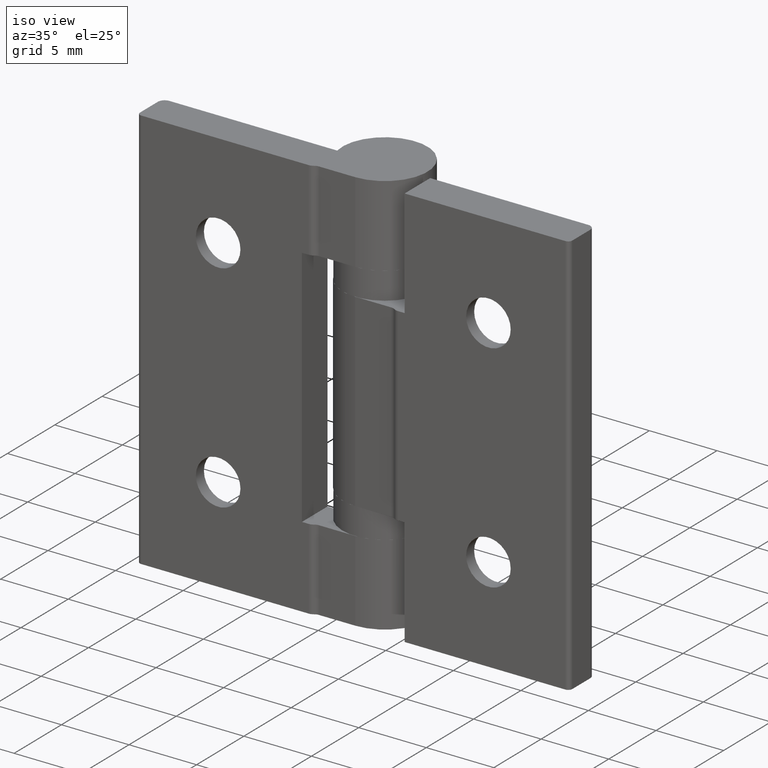
[diagram: clean part render]
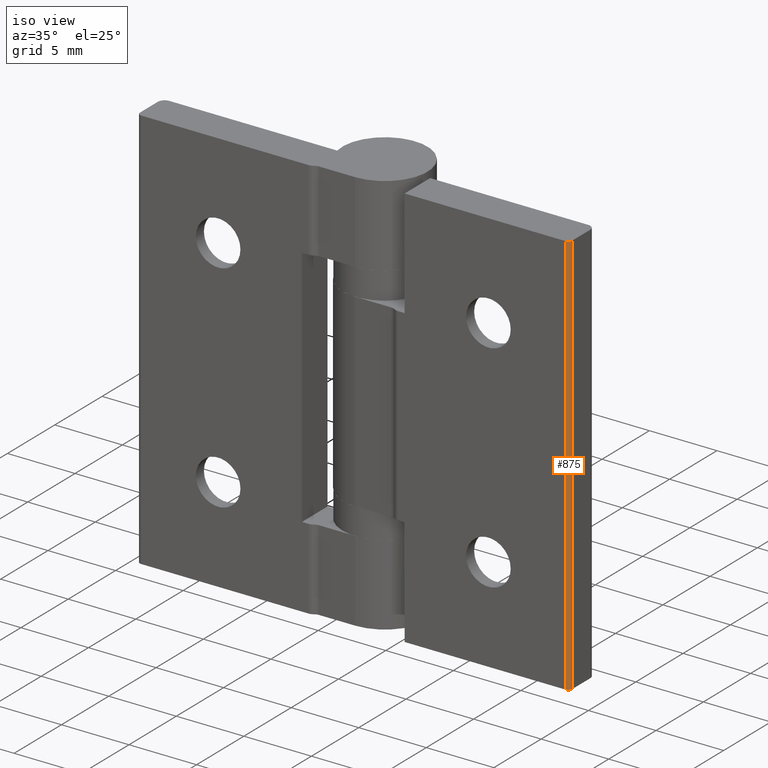
[diagram: same view with one face highlighted and labeled with its STEP entity id]
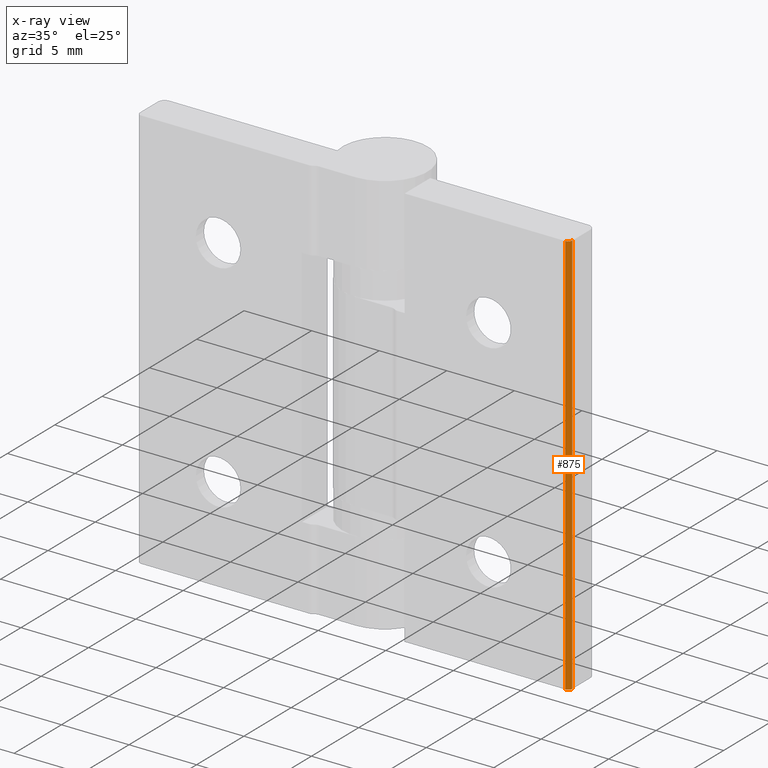
[diagram: x-ray of the same camera — body ghosted, the highlighted face saturated]
A machine part, iso view. The second image highlights one B-rep face of the part: STEP entity #875.
The next image is the same camera in x-ray: the body ghosted, the highlighted face saturated — about 0% of this face is hidden behind the body in this view.
In plain terms, the highlighted cylindrical surface (edge-blend (fillet) strip) has radius 0.3 mm, axis along (0, 0, -1).
Its self-contained STEP definition (entity closure, byte-faithful):
#133=FACE_OUTER_BOUND('',#202,.T.);
#202=EDGE_LOOP('',(#726,#727,#728,#729));
#269=LINE('',#1440,#330);
#270=LINE('',#1443,#331);
#330=VECTOR('',#1171,30.);
#331=VECTOR('',#1174,30.);
#389=CIRCLE('',#964,0.3);
#390=CIRCLE('',#965,0.3);
#455=VERTEX_POINT('',#1436);
#456=VERTEX_POINT('',#1437);
#457=VERTEX_POINT('',#1439);
#458=VERTEX_POINT('',#1441);
#553=EDGE_CURVE('',#455,#456,#389,.T.);
#554=EDGE_CURVE('',#456,#457,#269,.T.);
#555=EDGE_CURVE('',#457,#458,#390,.T.);
#556=EDGE_CURVE('',#458,#455,#270,.T.);
#726=ORIENTED_EDGE('',*,*,#553,.T.);
#727=ORIENTED_EDGE('',*,*,#554,.T.);
#728=ORIENTED_EDGE('',*,*,#555,.T.);
#729=ORIENTED_EDGE('',*,*,#556,.T.);
#838=CYLINDRICAL_SURFACE('',#963,0.3);
#875=ADVANCED_FACE('',(#133),#838,.T.);
#963=AXIS2_PLACEMENT_3D('',#1435,#1167,#1168);
#964=AXIS2_PLACEMENT_3D('',#1438,#1169,#1170);
#965=AXIS2_PLACEMENT_3D('',#1442,#1172,#1173);
#1167=DIRECTION('center_axis',(0.,0.,-1.));
#1168=DIRECTION('ref_axis',(0.70710678118655,-0.707106781186545,0.));
#1169=DIRECTION('center_axis',(0.,0.,1.));
#1170=DIRECTION('ref_axis',(0.70710678118655,-0.707106781186545,0.));
#1171=DIRECTION('',(0.,0.,1.));
#1172=DIRECTION('center_axis',(0.,0.,-1.));
#1173=DIRECTION('ref_axis',(0.70710678118655,-0.707106781186545,0.));
#1174=DIRECTION('',(0.,0.,-1.));
#1435=CARTESIAN_POINT('Origin',(15.7,-3.05,0.));
#1436=CARTESIAN_POINT('',(15.7,-3.35,-30.));
#1437=CARTESIAN_POINT('',(16.,-3.05,-30.));
#1438=CARTESIAN_POINT('Origin',(15.7,-3.05,-30.));
#1439=CARTESIAN_POINT('',(16.,-3.05,0.));
#1440=CARTESIAN_POINT('',(16.,-3.05,0.));
#1441=CARTESIAN_POINT('',(15.7,-3.35,0.));
#1442=CARTESIAN_POINT('Origin',(15.7,-3.05,0.));
#1443=CARTESIAN_POINT('',(15.7,-3.35,0.));